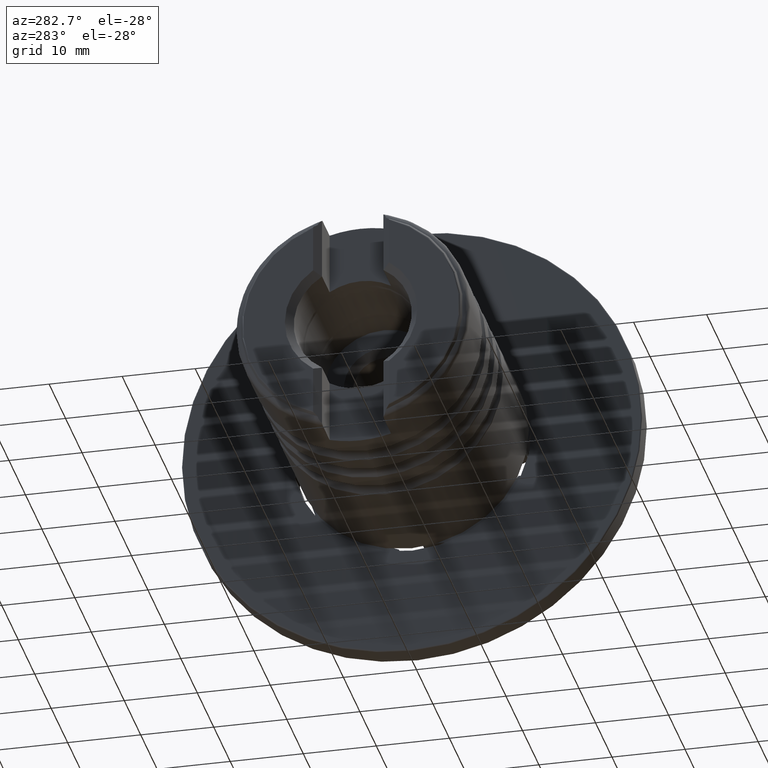
[diagram: clean part render]
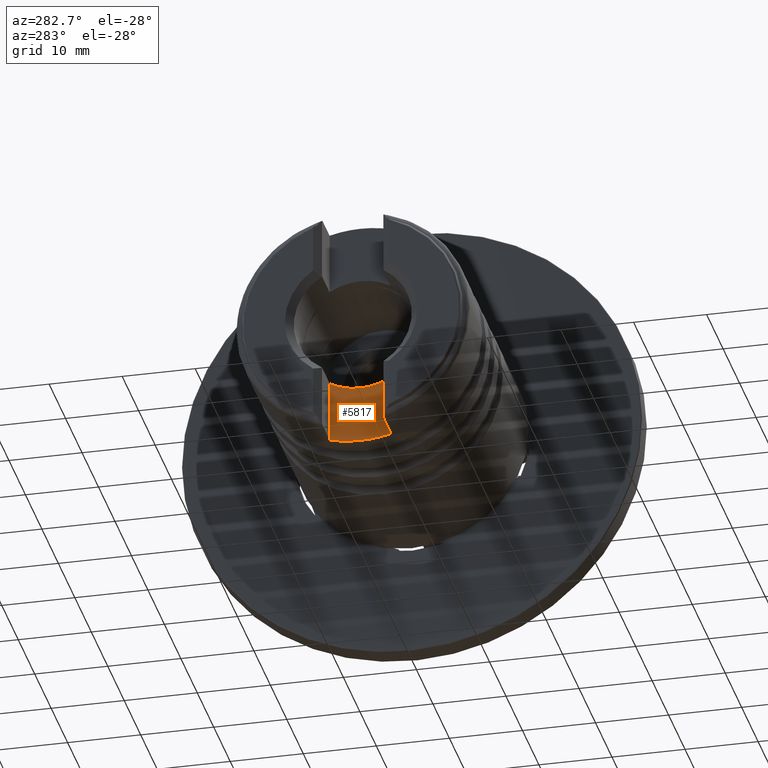
[diagram: same view with one face highlighted and labeled with its STEP entity id]
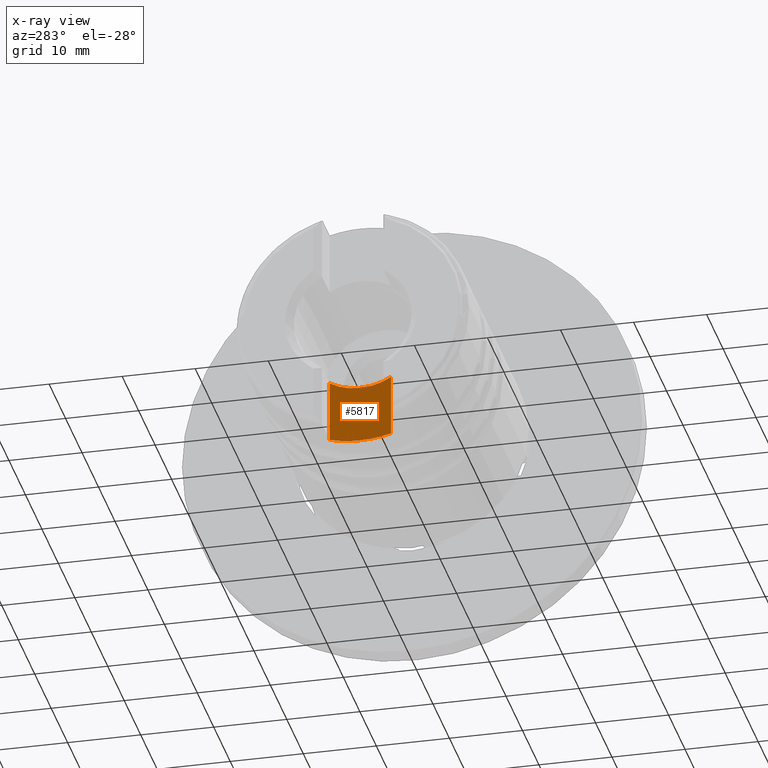
[diagram: x-ray of the same camera — body ghosted, the highlighted face saturated]
A machine part, auxiliary view. The second image highlights one B-rep face of the part: STEP entity #5817.
The next image is the same camera in x-ray: the body ghosted, the highlighted face saturated — about 0% of this face is hidden behind the body in this view.
In plain terms, the highlighted planar face has unit normal (1, 0, 0).
Its self-contained STEP definition (entity closure, byte-faithful):
#74 = DIRECTION ( 'NONE',  ( -1.000000000000000000, 0.0000000000000000000, -0.0000000000000000000 ) ) ;
#124 = CARTESIAN_POINT ( 'NONE',  ( -34.12493930000000120, -4.200000000000005507, -6.896783670668513722 ) ) ;
#231 = CARTESIAN_POINT ( 'NONE',  ( -34.12493930000000120, 0.0000000000000000000, -8.074999999999993960 ) ) ;
#255 = VECTOR ( 'NONE', #2753, 1000.000000000000000 ) ;
#521 = DIRECTION ( 'NONE',  ( -1.000000000000000000, 0.0000000000000000000, -0.0000000000000000000 ) ) ;
#892 = DIRECTION ( 'NONE',  ( -1.000000000000000000, 0.0000000000000000000, -0.0000000000000000000 ) ) ;
#1050 = ORIENTED_EDGE ( 'NONE', *, *, #4518, .T. ) ;
#1149 = CARTESIAN_POINT ( 'NONE',  ( -34.12493930000000120, -4.200000000000005507, -15.43891187875621718 ) ) ;
#1403 = VERTEX_POINT ( 'NONE', #1149 ) ;
#1432 = VERTEX_POINT ( 'NONE', #124 ) ;
#1510 = CARTESIAN_POINT ( 'NONE',  ( -34.12493930000000120, -4.200000000000005507, -25.00000000000000000 ) ) ;
#1536 = CARTESIAN_POINT ( 'NONE',  ( -34.12493930000000120, 4.199999999999995737, -15.43891187875622073 ) ) ;
#1640 = AXIS2_PLACEMENT_3D ( 'NONE', #6226, #4523, #4117 ) ;
#1656 = LINE ( 'NONE', #1685, #255 ) ;
#1685 = CARTESIAN_POINT ( 'NONE',  ( -34.12493930000000120, 4.199999999999995737, -25.00000000000000000 ) ) ;
#1687 = EDGE_CURVE ( 'NONE', #1403, #1432, #2182, .T. ) ;
#1832 = DIRECTION ( 'NONE',  ( 1.000000000000000000, -0.0000000000000000000, 0.0000000000000000000 ) ) ;
#2039 = DIRECTION ( 'NONE',  ( 0.0000000000000000000, 2.664535259100375697E-15, -1.000000000000000000 ) ) ;
#2043 = AXIS2_PLACEMENT_3D ( 'NONE', #2699, #74, #3775 ) ;
#2182 = LINE ( 'NONE', #1510, #4624 ) ;
#2223 = ORIENTED_EDGE ( 'NONE', *, *, #3655, .T. ) ;
#2231 = VERTEX_POINT ( 'NONE', #4215 ) ;
#2391 = ORIENTED_EDGE ( 'NONE', *, *, #5677, .F. ) ;
#2435 = VERTEX_POINT ( 'NONE', #231 ) ;
#2478 = DIRECTION ( 'NONE',  ( 0.0000000000000000000, 1.065814103640150121E-14, -1.000000000000000000 ) ) ;
#2610 = CARTESIAN_POINT ( 'NONE',  ( -34.12493930000000120, 0.0000000000000000000, 0.0000000000000000000 ) ) ;
#2699 = CARTESIAN_POINT ( 'NONE',  ( -34.12493930000000120, 0.0000000000000000000, 0.0000000000000000000 ) ) ;
#2753 = DIRECTION ( 'NONE',  ( -0.0000000000000000000, -0.0000000000000000000, 1.000000000000000000 ) ) ;
#2861 = DIRECTION ( 'NONE',  ( 0.0000000000000000000, 0.0000000000000000000, -1.000000000000000000 ) ) ;
#2968 = ORIENTED_EDGE ( 'NONE', *, *, #6088, .F. ) ;
#3140 = EDGE_LOOP ( 'NONE', ( #2223, #1050, #4907, #2968, #4200, #2391 ) ) ;
#3141 = CIRCLE ( 'NONE', #1640, 15.99999999999999645 ) ;
#3284 = CIRCLE ( 'NONE', #2043, 8.074999999999993960 ) ;
#3485 = CIRCLE ( 'NONE', #6679, 15.99999999999999645 ) ;
#3515 = CARTESIAN_POINT ( 'NONE',  ( -34.12493930000000120, 0.0000000000000000000, 0.0000000000000000000 ) ) ;
#3655 = EDGE_CURVE ( 'NONE', #6603, #2231, #3485, .T. ) ;
#3701 = FACE_OUTER_BOUND ( 'NONE', #3140, .T. ) ;
#3775 = DIRECTION ( 'NONE',  ( 0.0000000000000000000, 0.0000000000000000000, -1.000000000000000000 ) ) ;
#3959 = AXIS2_PLACEMENT_3D ( 'NONE', #2610, #521, #2039 ) ;
#4075 = CARTESIAN_POINT ( 'NONE',  ( -34.12493930000000120, 4.199999999999995737, -6.896783670668519939 ) ) ;
#4117 = DIRECTION ( 'NONE',  ( 0.0000000000000000000, 0.0000000000000000000, -1.000000000000000000 ) ) ;
#4143 = CIRCLE ( 'NONE', #3959, 8.074999999999993960 ) ;
#4200 = ORIENTED_EDGE ( 'NONE', *, *, #4260, .F. ) ;
#4215 = CARTESIAN_POINT ( 'NONE',  ( -34.12493930000000120, 0.0000000000000000000, -15.99999999999999645 ) ) ;
#4260 = EDGE_CURVE ( 'NONE', #6487, #2435, #4143, .T. ) ;
#4518 = EDGE_CURVE ( 'NONE', #2231, #1403, #3141, .T. ) ;
#4523 = DIRECTION ( 'NONE',  ( -1.000000000000000000, 0.0000000000000000000, -0.0000000000000000000 ) ) ;
#4624 = VECTOR ( 'NONE', #5183, 1000.000000000000000 ) ;
#4907 = ORIENTED_EDGE ( 'NONE', *, *, #1687, .T. ) ;
#5146 = AXIS2_PLACEMENT_3D ( 'NONE', #6082, #1832, #2861 ) ;
#5183 = DIRECTION ( 'NONE',  ( -0.0000000000000000000, -0.0000000000000000000, 1.000000000000000000 ) ) ;
#5677 = EDGE_CURVE ( 'NONE', #6603, #6487, #1656, .T. ) ;
#5817 = ADVANCED_FACE ( 'NONE', ( #3701 ), #6512, .F. ) ;
#6082 = CARTESIAN_POINT ( 'NONE',  ( -34.12493930000000120, -4.200000000000005507, -25.00000000000000000 ) ) ;
#6088 = EDGE_CURVE ( 'NONE', #2435, #1432, #3284, .T. ) ;
#6226 = CARTESIAN_POINT ( 'NONE',  ( -34.12493930000000120, 0.0000000000000000000, 0.0000000000000000000 ) ) ;
#6487 = VERTEX_POINT ( 'NONE', #4075 ) ;
#6512 = PLANE ( 'NONE',  #5146 ) ;
#6603 = VERTEX_POINT ( 'NONE', #1536 ) ;
#6679 = AXIS2_PLACEMENT_3D ( 'NONE', #3515, #892, #2478 ) ;